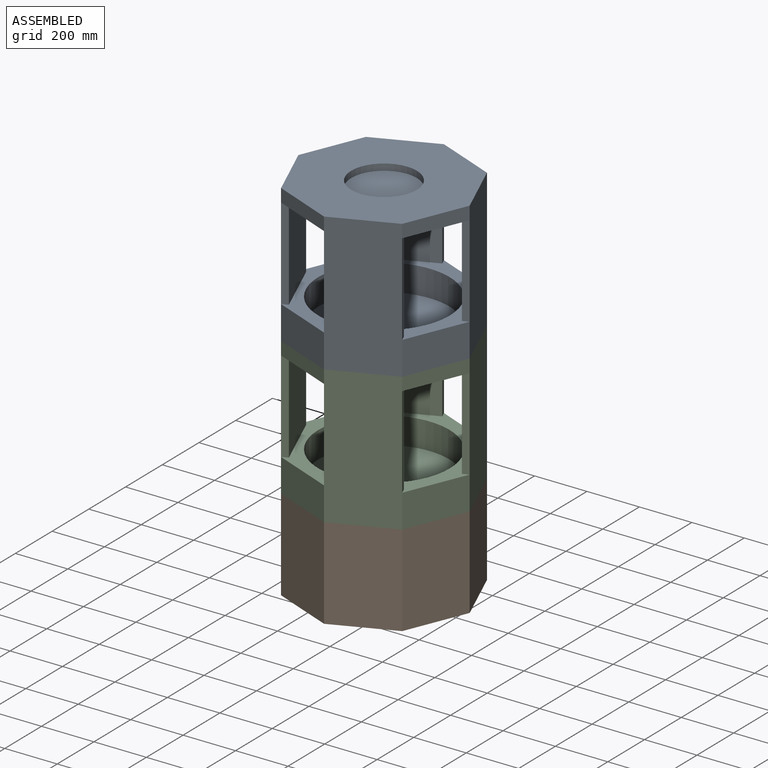
[diagram: assembled view]
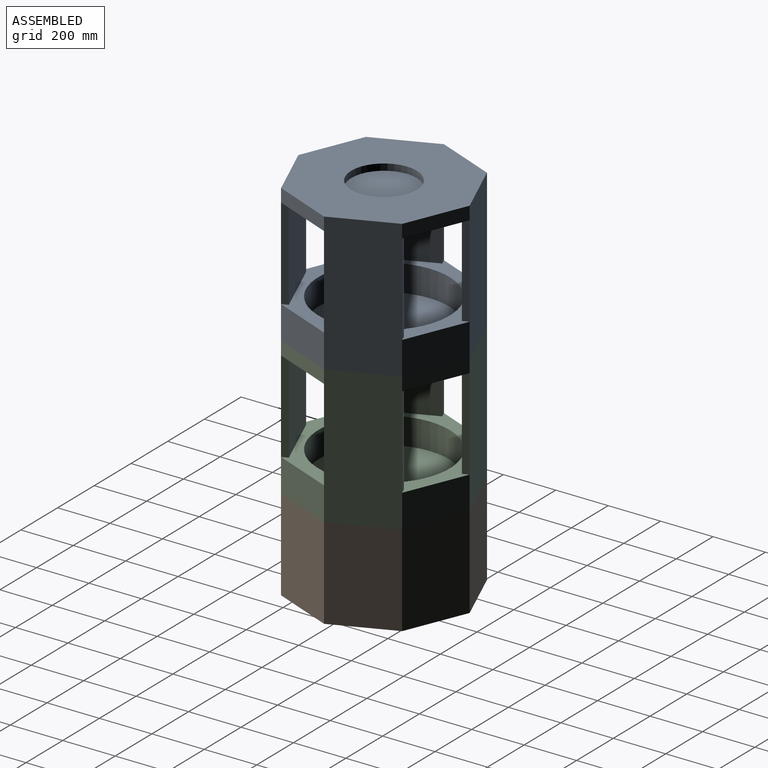
[diagram: assembled view, second angle]
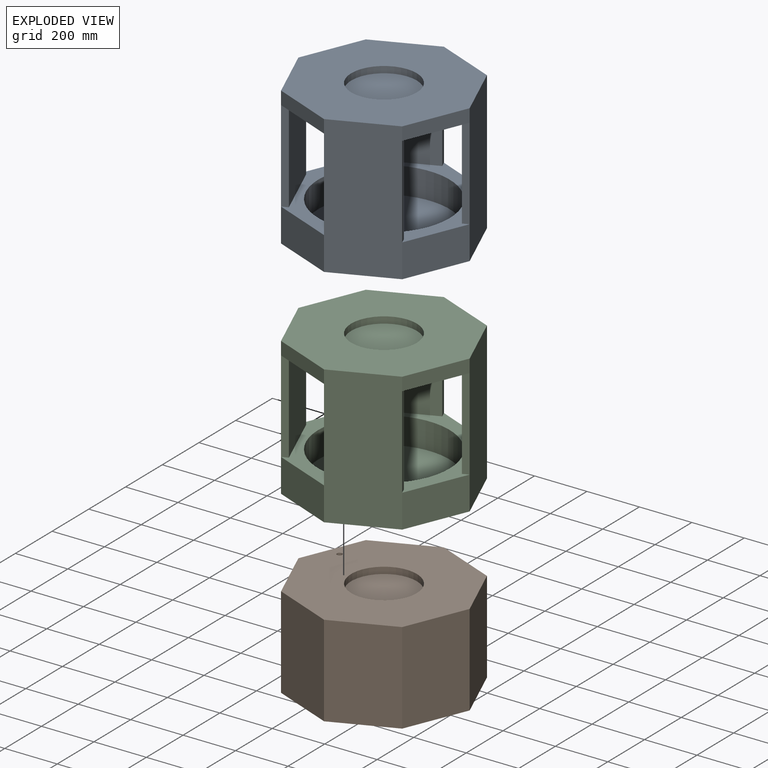
[diagram: exploded view]
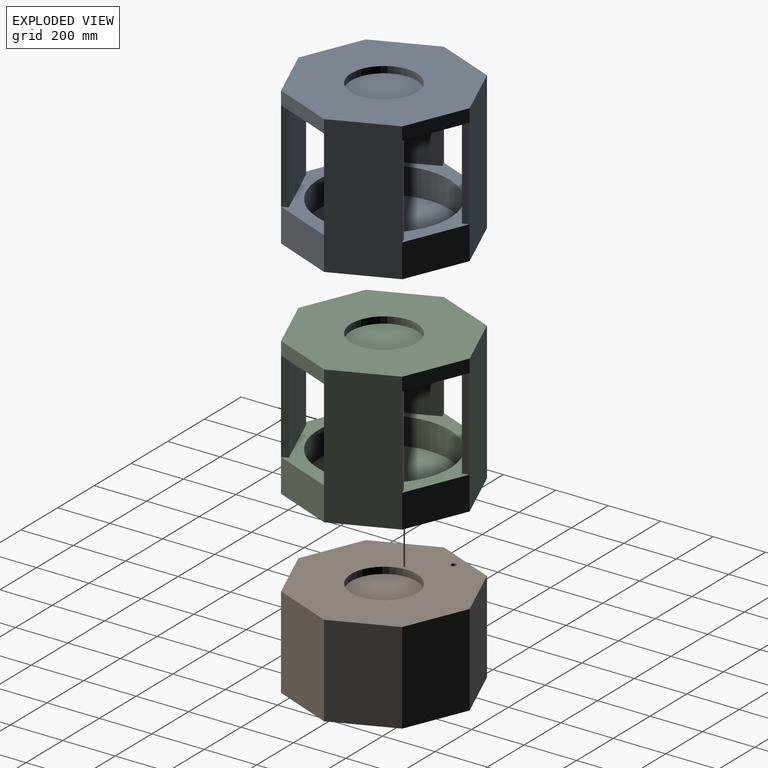
[diagram: exploded view, second angle]
ASSEMBLY  parts=3 mates=2
PART A: 34 faces, bbox 653.3x653.3x552 mm
  f0: plane 653.28x653.28mm, normal (0,0,1), area 80427.2mm2, adj f2,f4,f6,f8,f10,f11,f12,f13
  f1: plane 527x230.97mm, normal (0.38,-0.92,0), area 131750mm2, adj f2,f8,f9,f13,f14,f22,f25,f26
  f2: plane 230.97x127mm, normal (0.92,-0.38,0), area 31750mm2, adj f0,f1,f3,f9
  f3: plane 527x230.97mm, normal (0.92,0.38,0), area 131750mm2, adj f2,f4,f9,f16,f17,f22,f23,f26
  f4: plane 230.97x127mm, normal (0.38,0.92,0), area 31750mm2, adj f0,f3,f5,f9
  f5: plane 527x230.97mm, normal (-0.38,0.92,0), area 131750mm2, adj f4,f6,f9,f19,f20,f23,f24,f26
  f6: plane 230.97x127mm, normal (-0.92,0.38,0), area 31750mm2, adj f0,f5,f7,f9
  f7: plane 527x230.97mm, normal (-0.92,-0.38,0), area 131750mm2, adj f6,f8,f9,f10,f11,f24,f25,f26
  f8: plane 230.97x127mm, normal (-0.38,-0.92,0), area 31750mm2, adj f0,f1,f7,f9
  f9: plane 653.28x653.28mm, normal (0,0,-1), area 252689.3mm2, adj f1,f2,f3,f4,f5,f6,f7,f8
  f10: plane 350x23.1mm, normal (-0.38,0.92,0), area 8750mm2, adj f0,f7,f12,f27
  f11: plane 350x23.1mm, normal (0.38,-0.92,0), area 8750mm2, adj f0,f7,f12,f27
  f12: plane 350x230.97mm, normal (0.92,0.38,0), area 87500mm2, adj f0,f10,f11,f27
  f13: plane 350x23.1mm, normal (-0.92,-0.38,0), area 8750mm2, adj f0,f1,f15,f27
  f14: plane 350x23.1mm, normal (0.92,0.38,0), area 8750mm2, adj f0,f1,f15,f27
  f15: plane 350x230.97mm, normal (-0.38,0.92,0), area 87500mm2, adj f0,f13,f14,f27
  f16: plane 350x23.1mm, normal (0.38,-0.92,0), area 8750mm2, adj f0,f3,f18,f27
  f17: plane 350x23.1mm, normal (-0.38,0.92,0), area 8750mm2, adj f0,f3,f18,f27
  f18: plane 350x230.97mm, normal (-0.92,-0.38,0), area 87500mm2, adj f0,f16,f17,f27
  f19: plane 350x23.1mm, normal (0.92,0.38,0), area 8750mm2, adj f0,f5,f21,f27
  f20: plane 350x23.1mm, normal (-0.92,-0.38,0), area 8750mm2, adj f0,f5,f21,f27
  f21: plane 350x230.97mm, normal (0.38,-0.92,0), area 87500mm2, adj f0,f19,f20,f27
  f22: plane 230.97x95.67mm, normal (0.92,-0.38,0), area 12500mm2, adj f1,f3,f26,f27
  f23: plane 230.97x95.67mm, normal (0.38,0.92,0), area 12500mm2, adj f3,f5,f26,f27
  f24: plane 230.97x95.67mm, normal (-0.92,0.38,0), area 12500mm2, adj f5,f7,f26,f27
  f25: plane 230.97x95.67mm, normal (-0.38,-0.92,0), area 12500mm2, adj f1,f7,f26,f27
  f26: plane 653.28x653.28mm, normal (0,0,1), area 252689.3mm2, adj f1,f3,f5,f7,f22,f23,f24,f25
  f27: plane 653.28x653.28mm, normal (0,0,-1), area 276776.7mm2, adj f10,f11,f12,f13,f14,f15,f16,f17
  f28: cylinder r=250mm len=500mm, axis (0,0,1), area 159592.9mm2, adj f0,f29
  f29: plane 500x500mm, normal (0,0,1), area 196349.5mm2, adj f28
  f30: cylinder r=125mm len=250mm, axis (0,0,1), area 19635mm2, adj f9,f31
  f31: plane 250x250mm, normal (0,0,-1), area 49087.4mm2, adj f30
  f32: cylinder r=125mm len=250mm, axis (0,0,1), area 19635mm2, adj f26,f33
  f33: plane 250x250mm, normal (0,0,1), area 49087.4mm2, adj f32
PART B: 21 faces, bbox 603.6x603.6x350 mm
  f0: plane 350x176.78mm, normal (0.71,-0.71,0), area 87500mm2, adj f1,f7,f8,f9
  f1: plane 350x250mm, normal (1,0,0), area 87500mm2, adj f0,f2,f8,f9
  f2: plane 350x176.78mm, normal (0.71,0.71,0), area 87500mm2, adj f1,f3,f8,f9
  f3: plane 350x250mm, normal (0,1,0), area 87500mm2, adj f2,f4,f8,f9
  f4: plane 350x176.78mm, normal (-0.71,0.71,0), area 87500mm2, adj f3,f5,f8,f9
  f5: plane 350x250mm, normal (-1,0,0), area 87500mm2, adj f4,f6,f8,f9
  f6: plane 350x176.78mm, normal (-0.71,-0.71,0), area 60000mm2, adj f5,f7,f8,f9,f14,f15,f16,f18
  f7: plane 350x250mm, normal (0,-1,0), area 87500mm2, adj f0,f6,f8,f9
  f8: plane 603.55x603.55mm, normal (0,0,1), area 252375.2mm2, adj f0,f1,f2,f3,f4,f5,f6,f7
  f9: plane 603.55x603.55mm, normal (0,0,-1), area 301776.7mm2, adj f0,f1,f2,f3,f4,f5,f6,f7
  f10: cylinder r=125mm len=250mm, axis (0,0,1), area 19635mm2, adj f8,f11
  f11: plane 250x250mm, normal (0,0,1), area 49087.4mm2, adj f10
  f12: cylinder r=10mm len=125mm, axis (0,0,1), area 7854mm2, adj f8,f13
  f13: plane 20x20mm, normal (0,0,1), area 314.2mm2, adj f12
  f14: plane 81.32x81.32mm, normal (0,0,1), area 550mm2, adj f6,f15,f18,f19
  f15: plane 250x3.54mm, normal (-0.71,0.71,0), area 1250mm2, adj f6,f14,f16,f19
  f16: plane 81.32x81.32mm, normal (0,0,-1), area 550mm2, adj f6,f15,f18,f19
  f17: cylinder r=5.11mm len=10.76mm, axis (0.71,0.71,0), area 160.5mm2, adj f19,f20
  f18: plane 250x3.54mm, normal (0.71,-0.71,0), area 1250mm2, adj f6,f14,f16,f19
  f19: plane 250x77.78mm, normal (-0.71,-0.71,0), area 27418mm2, adj f14,f15,f16,f17,f18
  f20: plane 10.22x7.23mm, normal (-0.71,-0.71,0), area 82mm2, adj f17
PART C: same geometry as A
PLACE A t=(-66.81,18.75,429.7)mm
PLACE B rot(axis=(0,0,-1),22.5deg) t=(-66.81,18.75,-447.3)mm
PLACE C t=(-66.81,18.75,-97.3)mm
MATE revolute B.f10 <-> C.f30  axis (0,0,1) through (-66.81,18.75,-122.3)mm
MATE fastened A.f30 <-> C.f32  axis (0,0,-1) through (-66.81,18.75,404.7)mm
